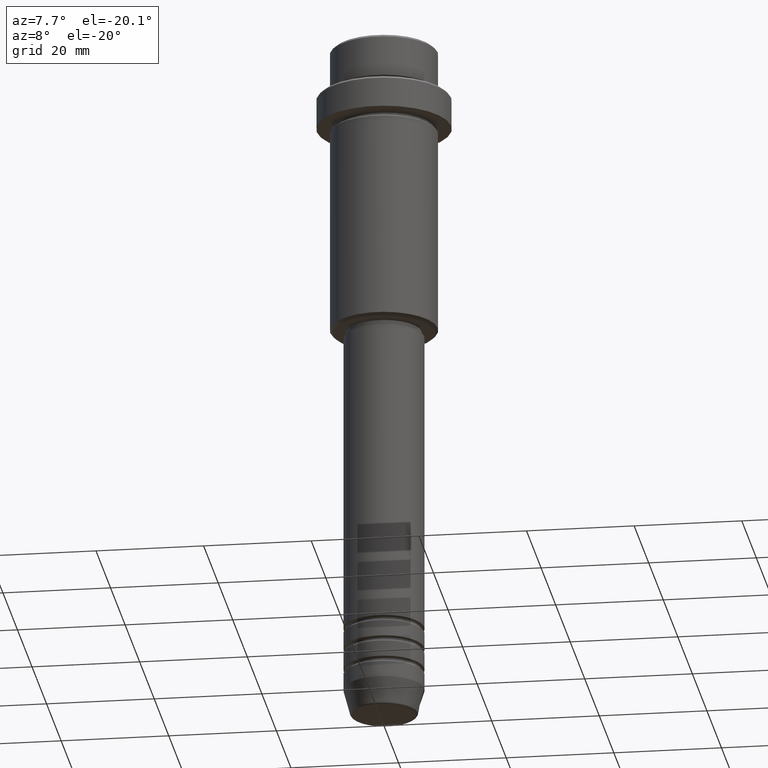
[diagram: clean part render]
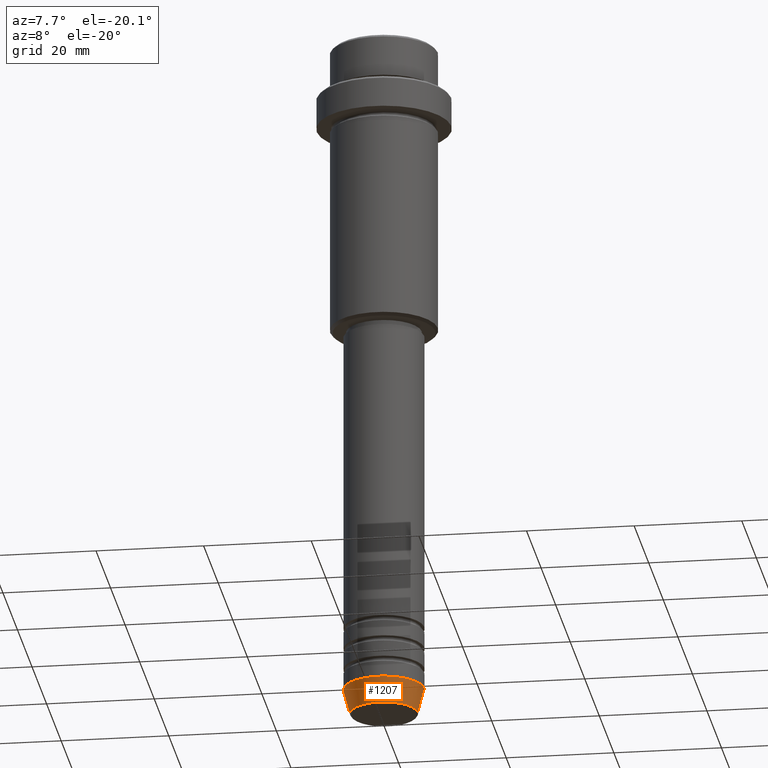
[diagram: same view with one face highlighted and labeled with its STEP entity id]
A machine part, auxiliary view. The second image highlights one B-rep face of the part: STEP entity #1207.
In plain terms, the highlighted conical surface has half-angle 15 deg.
Its self-contained STEP definition (entity closure, byte-faithful):
#13 = DIRECTION ( 'NONE',  ( -0.000000000000000000, -0.000000000000000000, 1.000000000000000000 ) ) ;
#39 = EDGE_CURVE ( 'NONE', #1219, #1346, #757, .T. ) ;
#82 = VERTEX_POINT ( 'NONE', #1192 ) ;
#115 = EDGE_CURVE ( 'NONE', #338, #82, #532, .T. ) ;
#132 = AXIS2_PLACEMENT_3D ( 'NONE', #224, #13, #679 ) ;
#189 = CARTESIAN_POINT ( 'NONE',  ( -7.500000000000000000, 9.184850993605147944E-16, -125.0000000000000000 ) ) ;
#224 = CARTESIAN_POINT ( 'NONE',  ( 0.000000000000000000, 0.000000000000000000, -125.0000000000000000 ) ) ;
#242 = DIRECTION ( 'NONE',  ( 1.000000000000000000, 0.000000000000000000, 0.000000000000000000 ) ) ;
#297 = EDGE_CURVE ( 'NONE', #82, #1346, #781, .T. ) ;
#313 = ORIENTED_EDGE ( 'NONE', *, *, #297, .F. ) ;
#338 = VERTEX_POINT ( 'NONE', #608 ) ;
#347 = DIRECTION ( 'NONE',  ( -0.000000000000000000, -0.000000000000000000, 1.000000000000000000 ) ) ;
#361 = ORIENTED_EDGE ( 'NONE', *, *, #731, .T. ) ;
#532 = LINE ( 'NONE', #189, #683 ) ;
#592 = ORIENTED_EDGE ( 'NONE', *, *, #39, .T. ) ;
#608 = CARTESIAN_POINT ( 'NONE',  ( -6.259553456999438659, 8.425296549405629486E-16, -129.6294095225512422 ) ) ;
#679 = DIRECTION ( 'NONE',  ( 1.000000000000000000, 0.000000000000000000, 0.000000000000000000 ) ) ;
#683 = VECTOR ( 'NONE', #1284, 1000.000000000000000 ) ;
#731 = EDGE_CURVE ( 'NONE', #338, #1219, #1191, .T. ) ;
#757 = LINE ( 'NONE', #1172, #1411 ) ;
#781 = CIRCLE ( 'NONE', #132, 7.500000000000000000 ) ;
#791 = CARTESIAN_POINT ( 'NONE',  ( 0.000000000000000000, 0.000000000000000000, -125.0000000000000000 ) ) ;
#830 = ORIENTED_EDGE ( 'NONE', *, *, #115, .F. ) ;
#1041 = AXIS2_PLACEMENT_3D ( 'NONE', #1314, #347, #1328 ) ;
#1128 = CARTESIAN_POINT ( 'NONE',  ( 7.500000000000000000, 0.000000000000000000, -125.0000000000000000 ) ) ;
#1172 = CARTESIAN_POINT ( 'NONE',  ( 7.500000000000000000, 0.000000000000000000, -125.0000000000000000 ) ) ;
#1191 = CIRCLE ( 'NONE', #1041, 6.259553456999438659 ) ;
#1192 = CARTESIAN_POINT ( 'NONE',  ( -7.500000000000000000, 9.184850993605147944E-16, -125.0000000000000000 ) ) ;
#1197 = CARTESIAN_POINT ( 'NONE',  ( 6.259553456999438659, 0.000000000000000000, -129.6294095225512422 ) ) ;
#1207 = ADVANCED_FACE ( 'NONE', ( #1318 ), #1213, .T. ) ;
#1213 = CONICAL_SURFACE ( 'NONE', #1263, 7.500000000000000000, 0.2617993877991500740 ) ;
#1219 = VERTEX_POINT ( 'NONE', #1197 ) ;
#1263 = AXIS2_PLACEMENT_3D ( 'NONE', #791, #1412, #242 ) ;
#1284 = DIRECTION ( 'NONE',  ( -0.2588190451025213501, 3.169619151431772337E-17, 0.9659258262890680902 ) ) ;
#1314 = CARTESIAN_POINT ( 'NONE',  ( 0.000000000000000000, 0.000000000000000000, -129.6294095225512422 ) ) ;
#1318 = FACE_OUTER_BOUND ( 'NONE', #1322, .T. ) ;
#1322 = EDGE_LOOP ( 'NONE', ( #830, #361, #592, #313 ) ) ;
#1328 = DIRECTION ( 'NONE',  ( 1.000000000000000000, 0.000000000000000000, 0.000000000000000000 ) ) ;
#1346 = VERTEX_POINT ( 'NONE', #1128 ) ;
#1405 = DIRECTION ( 'NONE',  ( 0.2588190451025213501, 0.000000000000000000, 0.9659258262890680902 ) ) ;
#1411 = VECTOR ( 'NONE', #1405, 1000.000000000000000 ) ;
#1412 = DIRECTION ( 'NONE',  ( -0.000000000000000000, -0.000000000000000000, 1.000000000000000000 ) ) ;